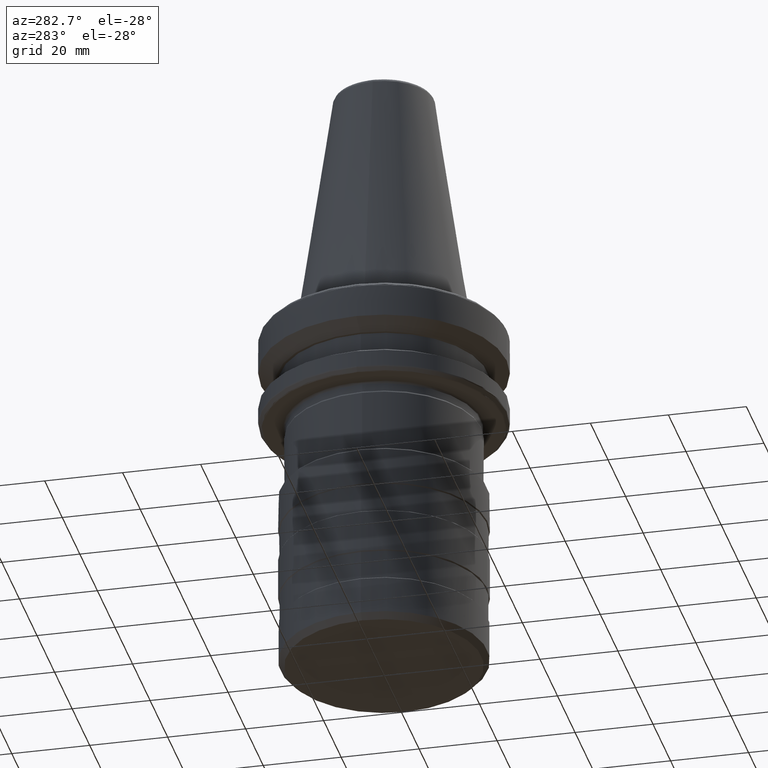
[diagram: clean part render]
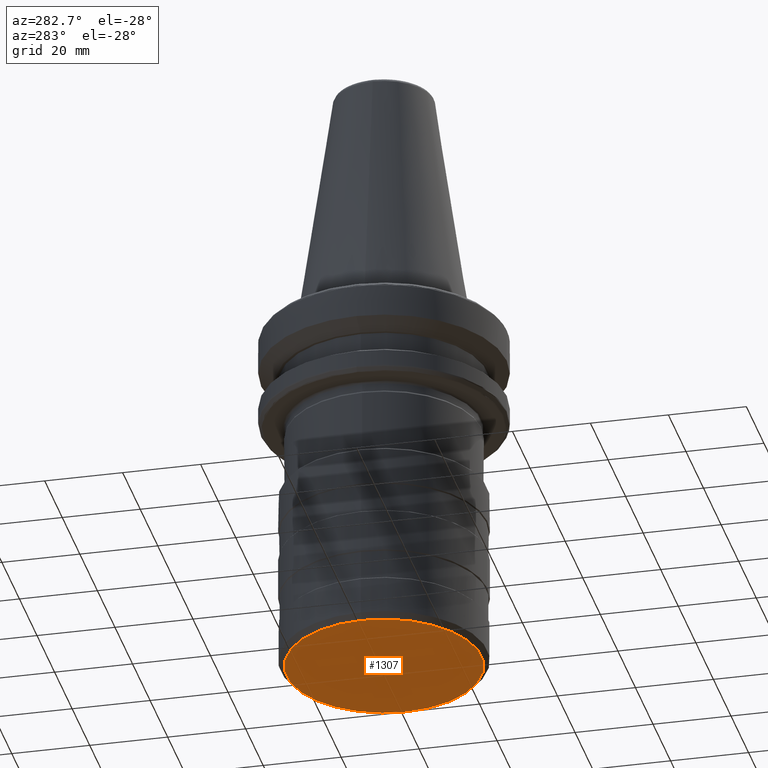
[diagram: same view with one face highlighted and labeled with its STEP entity id]
A machine part, auxiliary view. The second image highlights one B-rep face of the part: STEP entity #1307.
In plain terms, the highlighted planar face has unit normal (0, 0, 1).
Its self-contained STEP definition (entity closure, byte-faithful):
#298 = DIRECTION ( 'NONE',  ( 1.000000000000000000, 0.0000000000000000000, -0.0000000000000000000 ) ) ;
#300 = DIRECTION ( 'NONE',  ( 0.0000000000000000000, 0.0000000000000000000, 1.000000000000000000 ) ) ;
#320 = CARTESIAN_POINT ( 'NONE',  ( -25.30000000000000100, -25.30000000000000100, -94.50000000000000000 ) ) ;
#348 = PLANE ( 'NONE',  #1176 ) ;
#357 = DIRECTION ( 'NONE',  ( 0.0000000000000000000, 0.0000000000000000000, 1.000000000000000000 ) ) ;
#475 = EDGE_LOOP ( 'NONE', ( #2356, #1437 ) ) ;
#726 = CIRCLE ( 'NONE', #735, 24.99999999999997500 ) ;
#735 = AXIS2_PLACEMENT_3D ( 'NONE', #1786, #357, #2002 ) ;
#886 = CARTESIAN_POINT ( 'NONE',  ( 0.0000000000000000000, 0.0000000000000000000, -94.50000000000002800 ) ) ;
#915 = CIRCLE ( 'NONE', #2551, 24.99999999999997500 ) ;
#1135 = DIRECTION ( 'NONE',  ( 1.000000000000000000, 0.0000000000000000000, 0.0000000000000000000 ) ) ;
#1176 = AXIS2_PLACEMENT_3D ( 'NONE', #320, #300, #298 ) ;
#1177 = CARTESIAN_POINT ( 'NONE',  ( -24.99999999999997500, 3.153465507804434400E-015, -94.50000000000002800 ) ) ;
#1307 = ADVANCED_FACE ( 'NONE', ( #1721 ), #348, .F. ) ;
#1437 = ORIENTED_EDGE ( 'NONE', *, *, #2287, .F. ) ;
#1667 = VERTEX_POINT ( 'NONE', #1177 ) ;
#1721 = FACE_OUTER_BOUND ( 'NONE', #475, .T. ) ;
#1786 = CARTESIAN_POINT ( 'NONE',  ( 0.0000000000000000000, 0.0000000000000000000, -94.50000000000002800 ) ) ;
#1939 = EDGE_CURVE ( 'NONE', #2547, #1667, #915, .T. ) ;
#2002 = DIRECTION ( 'NONE',  ( 1.000000000000000000, 0.0000000000000000000, 0.0000000000000000000 ) ) ;
#2287 = EDGE_CURVE ( 'NONE', #1667, #2547, #726, .T. ) ;
#2356 = ORIENTED_EDGE ( 'NONE', *, *, #1939, .F. ) ;
#2447 = DIRECTION ( 'NONE',  ( 0.0000000000000000000, 0.0000000000000000000, 1.000000000000000000 ) ) ;
#2547 = VERTEX_POINT ( 'NONE', #2847 ) ;
#2551 = AXIS2_PLACEMENT_3D ( 'NONE', #886, #2447, #1135 ) ;
#2847 = CARTESIAN_POINT ( 'NONE',  ( 24.99999999999997500, 0.0000000000000000000, -94.50000000000002800 ) ) ;